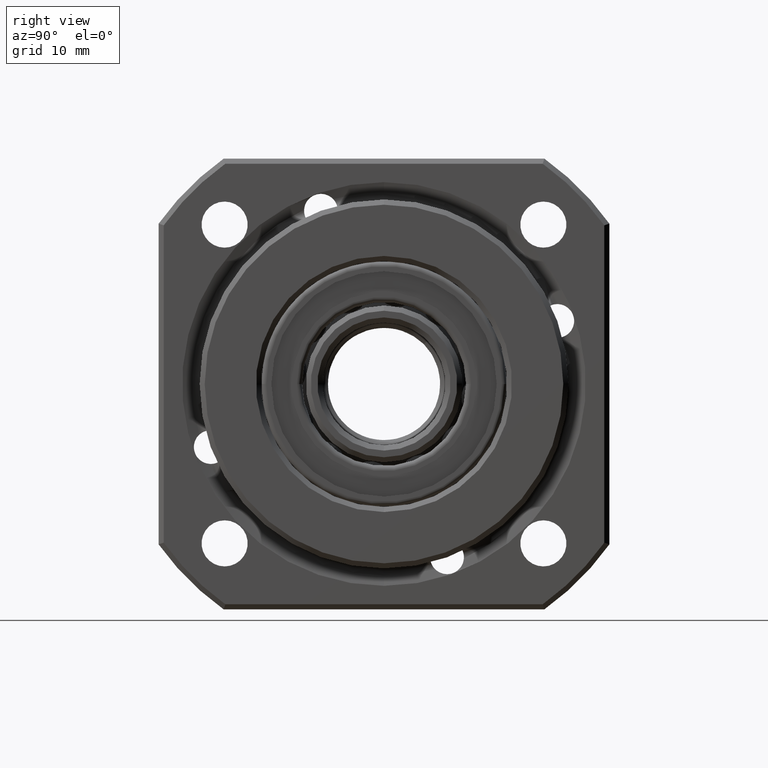
[diagram: clean part render]
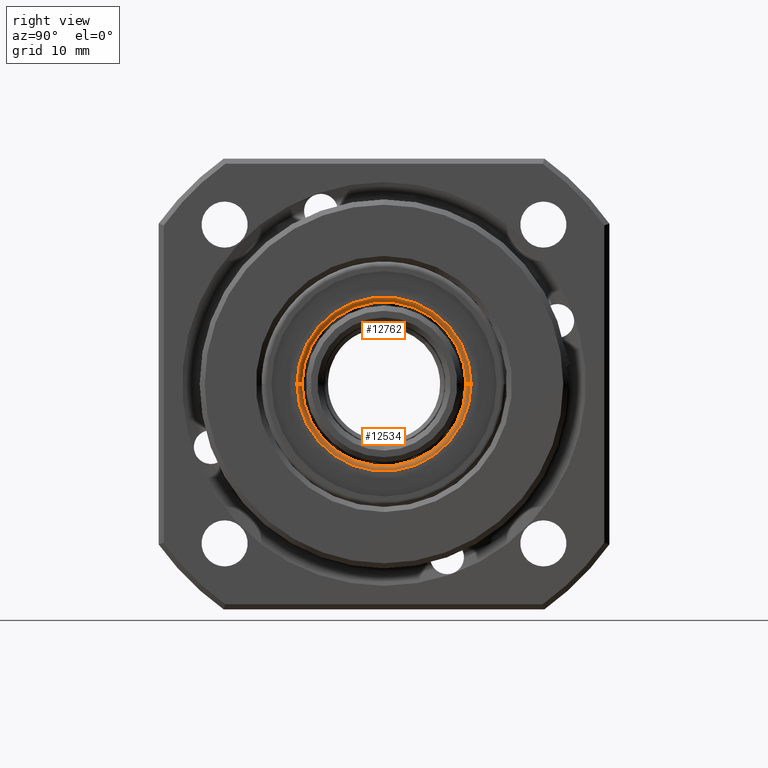
[diagram: same view with one multi-face feature highlighted, each face labeled with its STEP entity id]
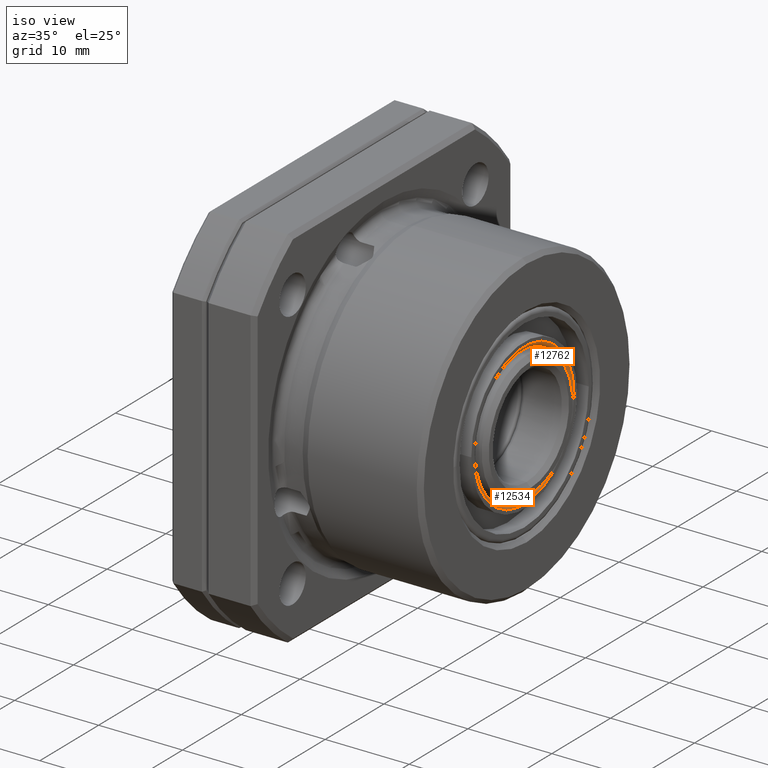
[diagram: same view with one multi-face feature highlighted, each face labeled with its STEP entity id]
A machine part, right view. The highlighted faces form ONE feature: a constant-radius fillet chain: 2 tangent blend faces with common blend radius 0.5 mm. The faces share edges in the B-rep.
A second angle (iso view) of the same feature is appended — it is thin or edge-on in the first view.
Their STEP definitions:
[1] entity #12762 (Torus):
#6541 = CARTESIAN_POINT ( 'NONE',  ( 22.69999999999999900, -8.499999999999989300, -2.602340069661893800E-015 ) ) ;
#6542 = DIRECTION ( 'NONE',  ( 0.0000000000000000000, 1.000000000000000000, 3.061576552543407900E-016 ) ) ;
#6543 = DIRECTION ( 'NONE',  ( -1.232595164407830900E-032, 3.061576552543406900E-016, -1.000000000000000000 ) ) ;
#6544 = CARTESIAN_POINT ( 'NONE',  ( 22.19999999999999600, -8.499999999999989300, -2.602340069661893800E-015 ) ) ;
#6545 = AXIS2_PLACEMENT_3D ( 'NONE', #6544, #6543, #6542 ) ;
#6546 = CIRCLE ( 'NONE', #6545, 0.5000000000000004400 ) ;
#6547 = CARTESIAN_POINT ( 'NONE',  ( 22.19999999999999600, 7.999999999999989300, 4.898910759189204600E-016 ) ) ;
#6548 = CARTESIAN_POINT ( 'NONE',  ( 22.19999999999999600, -7.999999999999989300, -1.469576158976822800E-015 ) ) ;
#6594 = DIRECTION ( 'NONE',  ( 0.0000000000000000000, -1.000000000000000000, -1.836970198721028000E-016 ) ) ;
#6595 = DIRECTION ( 'NONE',  ( 1.232595164407830900E-032, -1.836970198721029700E-016, 1.000000000000000000 ) ) ;
#6596 = CARTESIAN_POINT ( 'NONE',  ( 22.19999999999999600, 8.499999999999989300, 1.561424668912872700E-015 ) ) ;
#6597 = AXIS2_PLACEMENT_3D ( 'NONE', #6596, #6595, #6594 ) ;
#6598 = CIRCLE ( 'NONE', #6597, 0.5000000000000004400 ) ;
#6599 = CARTESIAN_POINT ( 'NONE',  ( 22.69999999999999900, 8.499999999999989300, 1.561424668912872700E-015 ) ) ;
#6689 = DIRECTION ( 'NONE',  ( 0.0000000000000000000, 1.000000000000000000, 1.836970198721029900E-016 ) ) ;
#6690 = DIRECTION ( 'NONE',  ( 1.000000000000000000, -0.0000000000000000000, -1.232595164407830900E-032 ) ) ;
#6691 = CARTESIAN_POINT ( 'NONE',  ( 22.19999999999999600, 1.540743955509788700E-030, -8.530730968292225300E-031 ) ) ;
#6692 = AXIS2_PLACEMENT_3D ( 'NONE', #6691, #6690, #6689 ) ;
#6693 = CIRCLE ( 'NONE', #6692, 7.999999999999989300 ) ;
#6807 = DIRECTION ( 'NONE',  ( 0.0000000000000000000, 1.000000000000000000, 1.836970198721029700E-016 ) ) ;
#6808 = DIRECTION ( 'NONE',  ( -1.000000000000000000, 0.0000000000000000000, 1.232595164407830900E-032 ) ) ;
#6809 = CARTESIAN_POINT ( 'NONE',  ( 22.69999999999999600, 1.540743955509788700E-030, -8.592360726512616800E-031 ) ) ;
#6810 = AXIS2_PLACEMENT_3D ( 'NONE', #6809, #6808, #6807 ) ;
#6814 = CIRCLE ( 'NONE', #6810, 8.499999999999989300 ) ;
#6875 = DIRECTION ( 'NONE',  ( 2.264240584104833500E-048, 1.000000000000000000, 1.836970198721029700E-016 ) ) ;
#6876 = DIRECTION ( 'NONE',  ( -1.000000000000000000, 0.0000000000000000000, 1.232595164407830900E-032 ) ) ;
#6877 = CARTESIAN_POINT ( 'NONE',  ( 22.19999999999999600, 1.540743955509788700E-030, -8.530730968292225300E-031 ) ) ;
#6878 = AXIS2_PLACEMENT_3D ( 'NONE', #6877, #6876, #6875 ) ;
#6880 = TOROIDAL_SURFACE ( 'NONE', #6878, 8.499999999999989300, 0.5000000000000000000 ) ;
#6885 = FACE_OUTER_BOUND ( 'NONE', #12763, .T. ) ;
#12588 = VERTEX_POINT ( 'NONE', #6548 ) ;
#12589 = VERTEX_POINT ( 'NONE', #6547 ) ;
#12591 = EDGE_CURVE ( 'NONE', #12588, #12592, #6546, .T. ) ;
#12592 = VERTEX_POINT ( 'NONE', #6541 ) ;
#12595 = VERTEX_POINT ( 'NONE', #6599 ) ;
#12597 = EDGE_CURVE ( 'NONE', #12589, #12595, #6598, .T. ) ;
#12640 = EDGE_CURVE ( 'NONE', #12589, #12588, #6693, .T. ) ;
#12689 = ORIENTED_EDGE ( 'NONE', *, *, #12591, .F. ) ;
#12690 = ORIENTED_EDGE ( 'NONE', *, *, #12640, .F. ) ;
#12723 = EDGE_CURVE ( 'NONE', #12592, #12595, #6814, .T. ) ;
#12739 = ORIENTED_EDGE ( 'NONE', *, *, #12597, .T. ) ;
#12740 = ORIENTED_EDGE ( 'NONE', *, *, #12723, .F. ) ;
#12762 = ADVANCED_FACE ( 'NONE', ( #6885 ), #6880, .T. ) ;
#12763 = EDGE_LOOP ( 'NONE', ( #12689, #12690, #12739, #12740 ) ) ;
[2] entity #12534 (Torus):
#6462 = DIRECTION ( 'NONE',  ( 2.264240584104833500E-048, 1.000000000000000000, 1.836970198721029700E-016 ) ) ;
#6463 = DIRECTION ( 'NONE',  ( -1.000000000000000000, 0.0000000000000000000, 1.232595164407830900E-032 ) ) ;
#6464 = AXIS2_PLACEMENT_3D ( 'NONE', #6466, #6463, #6462 ) ;
#6465 = TOROIDAL_SURFACE ( 'NONE', #6464, 8.499999999999989300, 0.5000000000000000000 ) ;
#6466 = CARTESIAN_POINT ( 'NONE',  ( 22.19999999999999600, 1.540743955509788700E-030, -8.530730968292225300E-031 ) ) ;
#6472 = FACE_OUTER_BOUND ( 'NONE', #12535, .T. ) ;
#6537 = DIRECTION ( 'NONE',  ( -1.000000000000000000, 0.0000000000000000000, 1.232595164407830900E-032 ) ) ;
#6538 = CARTESIAN_POINT ( 'NONE',  ( 22.69999999999999600, 1.540743955509788700E-030, -8.592360726512616800E-031 ) ) ;
#6539 = AXIS2_PLACEMENT_3D ( 'NONE', #6538, #6537, #6600 ) ;
#6540 = CIRCLE ( 'NONE', #6539, 8.499999999999989300 ) ;
#6541 = CARTESIAN_POINT ( 'NONE',  ( 22.69999999999999900, -8.499999999999989300, -2.602340069661893800E-015 ) ) ;
#6542 = DIRECTION ( 'NONE',  ( 0.0000000000000000000, 1.000000000000000000, 3.061576552543407900E-016 ) ) ;
#6543 = DIRECTION ( 'NONE',  ( -1.232595164407830900E-032, 3.061576552543406900E-016, -1.000000000000000000 ) ) ;
#6544 = CARTESIAN_POINT ( 'NONE',  ( 22.19999999999999600, -8.499999999999989300, -2.602340069661893800E-015 ) ) ;
#6545 = AXIS2_PLACEMENT_3D ( 'NONE', #6544, #6543, #6542 ) ;
#6546 = CIRCLE ( 'NONE', #6545, 0.5000000000000004400 ) ;
#6547 = CARTESIAN_POINT ( 'NONE',  ( 22.19999999999999600, 7.999999999999989300, 4.898910759189204600E-016 ) ) ;
#6548 = CARTESIAN_POINT ( 'NONE',  ( 22.19999999999999600, -7.999999999999989300, -1.469576158976822800E-015 ) ) ;
#6549 = DIRECTION ( 'NONE',  ( 0.0000000000000000000, 1.000000000000000000, 1.836970198721029900E-016 ) ) ;
#6550 = DIRECTION ( 'NONE',  ( 1.000000000000000000, -0.0000000000000000000, -1.232595164407830900E-032 ) ) ;
#6551 = CARTESIAN_POINT ( 'NONE',  ( 22.19999999999999600, 1.540743955509788700E-030, -8.530730968292225300E-031 ) ) ;
#6552 = AXIS2_PLACEMENT_3D ( 'NONE', #6551, #6550, #6549 ) ;
#6553 = CIRCLE ( 'NONE', #6552, 7.999999999999989300 ) ;
#6594 = DIRECTION ( 'NONE',  ( 0.0000000000000000000, -1.000000000000000000, -1.836970198721028000E-016 ) ) ;
#6595 = DIRECTION ( 'NONE',  ( 1.232595164407830900E-032, -1.836970198721029700E-016, 1.000000000000000000 ) ) ;
#6596 = CARTESIAN_POINT ( 'NONE',  ( 22.19999999999999600, 8.499999999999989300, 1.561424668912872700E-015 ) ) ;
#6597 = AXIS2_PLACEMENT_3D ( 'NONE', #6596, #6595, #6594 ) ;
#6598 = CIRCLE ( 'NONE', #6597, 0.5000000000000004400 ) ;
#6599 = CARTESIAN_POINT ( 'NONE',  ( 22.69999999999999900, 8.499999999999989300, 1.561424668912872700E-015 ) ) ;
#6600 = DIRECTION ( 'NONE',  ( 0.0000000000000000000, 1.000000000000000000, 1.836970198721029700E-016 ) ) ;
#12534 = ADVANCED_FACE ( 'NONE', ( #6472 ), #6465, .T. ) ;
#12535 = EDGE_LOOP ( 'NONE', ( #12536, #12590, #12593, #12596 ) ) ;
#12536 = ORIENTED_EDGE ( 'NONE', *, *, #12587, .F. ) ;
#12587 = EDGE_CURVE ( 'NONE', #12588, #12589, #6553, .T. ) ;
#12588 = VERTEX_POINT ( 'NONE', #6548 ) ;
#12589 = VERTEX_POINT ( 'NONE', #6547 ) ;
#12590 = ORIENTED_EDGE ( 'NONE', *, *, #12591, .T. ) ;
#12591 = EDGE_CURVE ( 'NONE', #12588, #12592, #6546, .T. ) ;
#12592 = VERTEX_POINT ( 'NONE', #6541 ) ;
#12593 = ORIENTED_EDGE ( 'NONE', *, *, #12594, .F. ) ;
#12594 = EDGE_CURVE ( 'NONE', #12595, #12592, #6540, .T. ) ;
#12595 = VERTEX_POINT ( 'NONE', #6599 ) ;
#12596 = ORIENTED_EDGE ( 'NONE', *, *, #12597, .F. ) ;
#12597 = EDGE_CURVE ( 'NONE', #12589, #12595, #6598, .T. ) ;